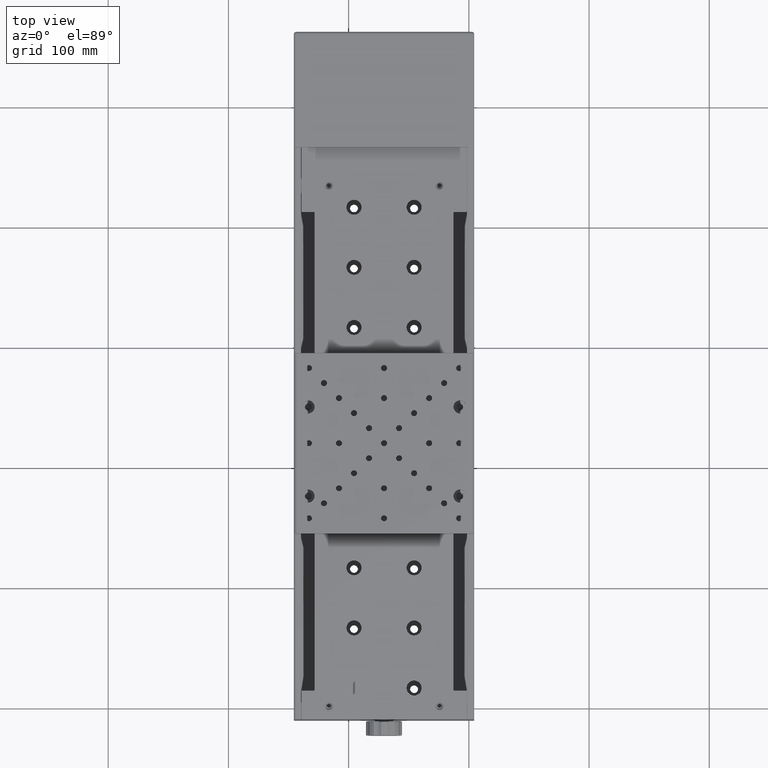
[diagram: clean part render]
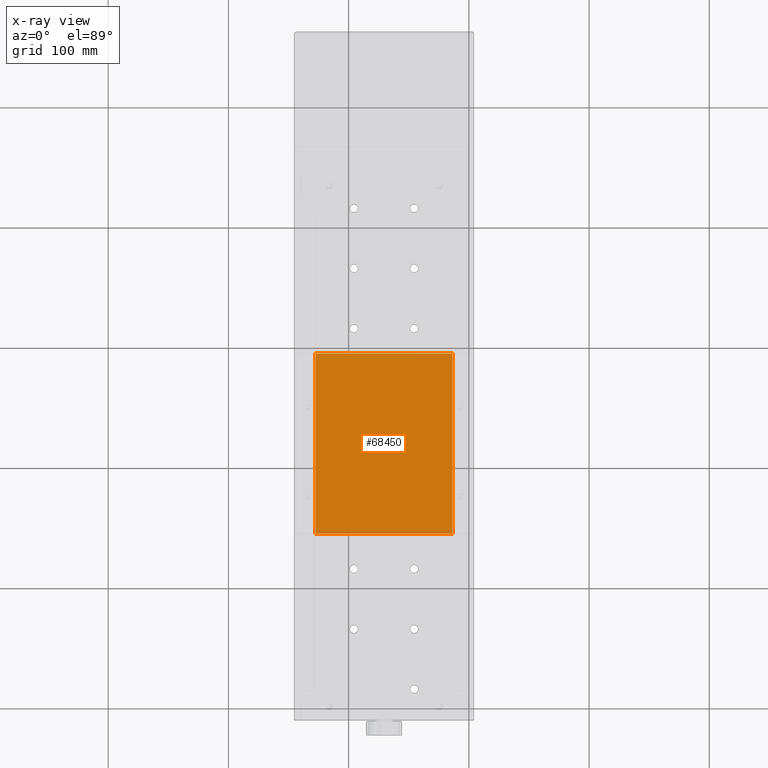
[diagram: x-ray — body ghosted, one internal face saturated and labeled with its STEP entity id]
A machine part, top view, then the same camera in x-ray: the body is ghosted and one INTERNAL B-rep face — a face not visible from any outside direction — is saturated and labeled: STEP entity #68450.
In plain terms, the highlighted planar face has unit normal (-0, 0, -1).
Its self-contained STEP definition (entity closure, byte-faithful):
#6420 = DIRECTION ( 'NONE',  ( -8.668995986095240018E-19, 1.362391624965280082E-20, -1.000000000000000000 ) ) ;
#8307 = EDGE_LOOP ( 'NONE', ( #12250, #66634, #17651, #32340 ) ) ;
#12250 = ORIENTED_EDGE ( 'NONE', *, *, #49913, .F. ) ;
#12920 = PLANE ( 'NONE',  #60580 ) ;
#17651 = ORIENTED_EDGE ( 'NONE', *, *, #70909, .F. ) ;
#20674 = LINE ( 'NONE', #39413, #48060 ) ;
#22207 = VECTOR ( 'NONE', #41256, 1000.000000000000000 ) ;
#25909 = LINE ( 'NONE', #32008, #46432 ) ;
#25920 = EDGE_CURVE ( 'NONE', #43470, #68217, #67940, .T. ) ;
#28818 = VERTEX_POINT ( 'NONE', #34076 ) ;
#30009 = CARTESIAN_POINT ( 'NONE',  ( -13.58543230288091941, 44.70985474310350583, 42.54665025355549801 ) ) ;
#32008 = CARTESIAN_POINT ( 'NONE',  ( -127.5854323028810029, 194.5098547431035172, 42.54665025355549801 ) ) ;
#32340 = ORIENTED_EDGE ( 'NONE', *, *, #25920, .T. ) ;
#34027 = CARTESIAN_POINT ( 'NONE',  ( -127.5854323028810029, 194.3098547431035001, 42.54665025355549801 ) ) ;
#34076 = CARTESIAN_POINT ( 'NONE',  ( -127.5854323028810029, 44.70985474310350583, 42.54665025355549801 ) ) ;
#34544 = EDGE_CURVE ( 'NONE', #52155, #28818, #42054, .T. ) ;
#37794 = DIRECTION ( 'NONE',  ( 1.000000000000000000, -3.885780586188049864E-16, -8.668995986095240018E-19 ) ) ;
#39413 = CARTESIAN_POINT ( 'NONE',  ( -13.58543230288086079, 194.5098547431035172, 42.54665025355549801 ) ) ;
#39446 = CARTESIAN_POINT ( 'NONE',  ( -13.58543230288086079, 194.3098547431035001, 42.54665025355549801 ) ) ;
#41256 = DIRECTION ( 'NONE',  ( -1.000000000000000000, 2.661133787040694931E-16, 8.668995986095240018E-19 ) ) ;
#42054 = LINE ( 'NONE', #72194, #22207 ) ;
#43470 = VERTEX_POINT ( 'NONE', #34027 ) ;
#44301 = CARTESIAN_POINT ( 'NONE',  ( -13.58543230288086079, 194.3098547431035001, 42.54665025355549801 ) ) ;
#46432 = VECTOR ( 'NONE', #56856, 1000.000000000000000 ) ;
#48060 = VECTOR ( 'NONE', #71144, 1000.000000000000000 ) ;
#49913 = EDGE_CURVE ( 'NONE', #52155, #68217, #20674, .T. ) ;
#50771 = CARTESIAN_POINT ( 'NONE',  ( -70.58543230288090342, 119.5098547431034035, 42.54665025355549801 ) ) ;
#52155 = VERTEX_POINT ( 'NONE', #30009 ) ;
#56494 = FACE_OUTER_BOUND ( 'NONE', #8307, .T. ) ;
#56856 = DIRECTION ( 'NONE',  ( -3.885780586188049864E-16, -1.000000000000000000, -1.362391624965246078E-20 ) ) ;
#60580 = AXIS2_PLACEMENT_3D ( 'NONE', #50771, #6420, #75612 ) ;
#66477 = VECTOR ( 'NONE', #37794, 1000.000000000000000 ) ;
#66634 = ORIENTED_EDGE ( 'NONE', *, *, #34544, .T. ) ;
#67940 = LINE ( 'NONE', #44301, #66477 ) ;
#68217 = VERTEX_POINT ( 'NONE', #39446 ) ;
#68450 = ADVANCED_FACE ( 'NONE', ( #56494 ), #12920, .T. ) ;
#70909 = EDGE_CURVE ( 'NONE', #43470, #28818, #25909, .T. ) ;
#71144 = DIRECTION ( 'NONE',  ( 3.885780586188049864E-16, 1.000000000000000000, 1.362391624965246078E-20 ) ) ;
#72194 = CARTESIAN_POINT ( 'NONE',  ( -127.5854323028810029, 44.70985474310354846, 42.54665025355549801 ) ) ;
#75612 = DIRECTION ( 'NONE',  ( -1.000000000000000000, 0.000000000000000000, 8.668995986095240018E-19 ) ) ;